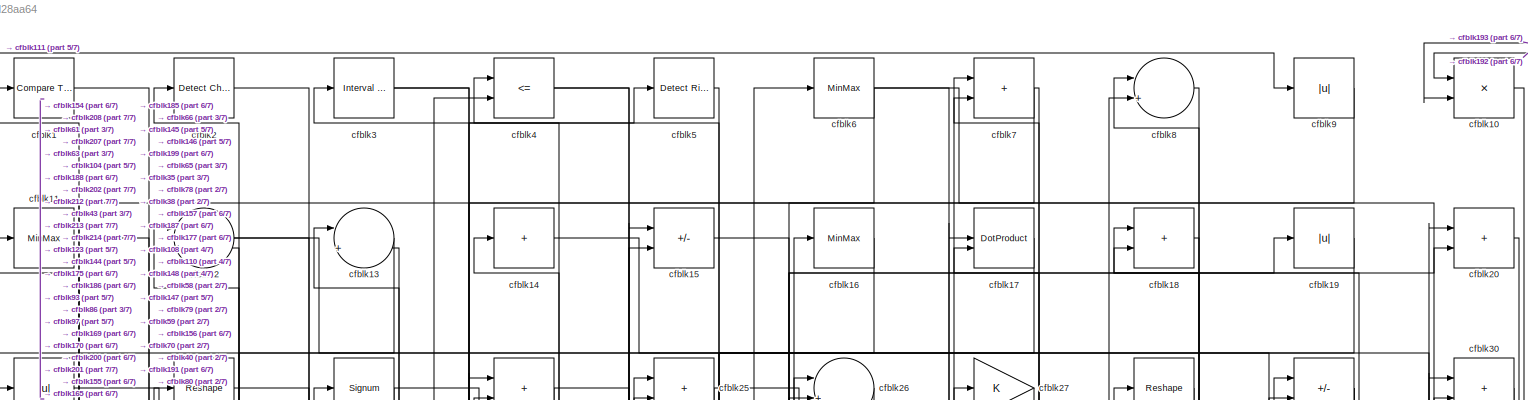
[diagram: root canvas - part 1/7, full width, top band]
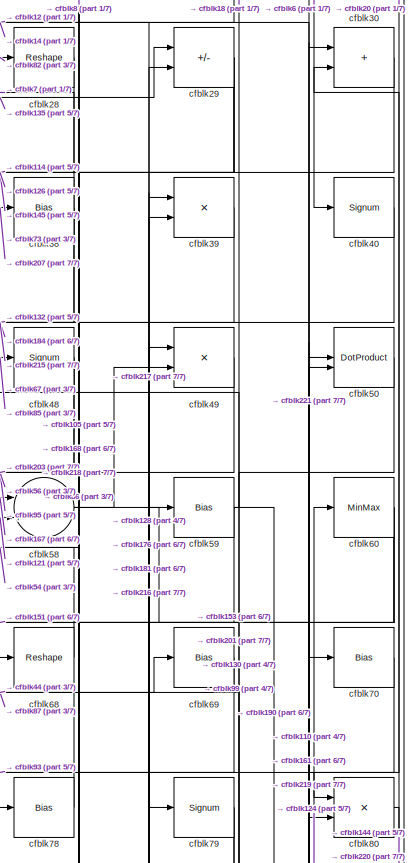
[diagram: root canvas - part 2/7, top right region]
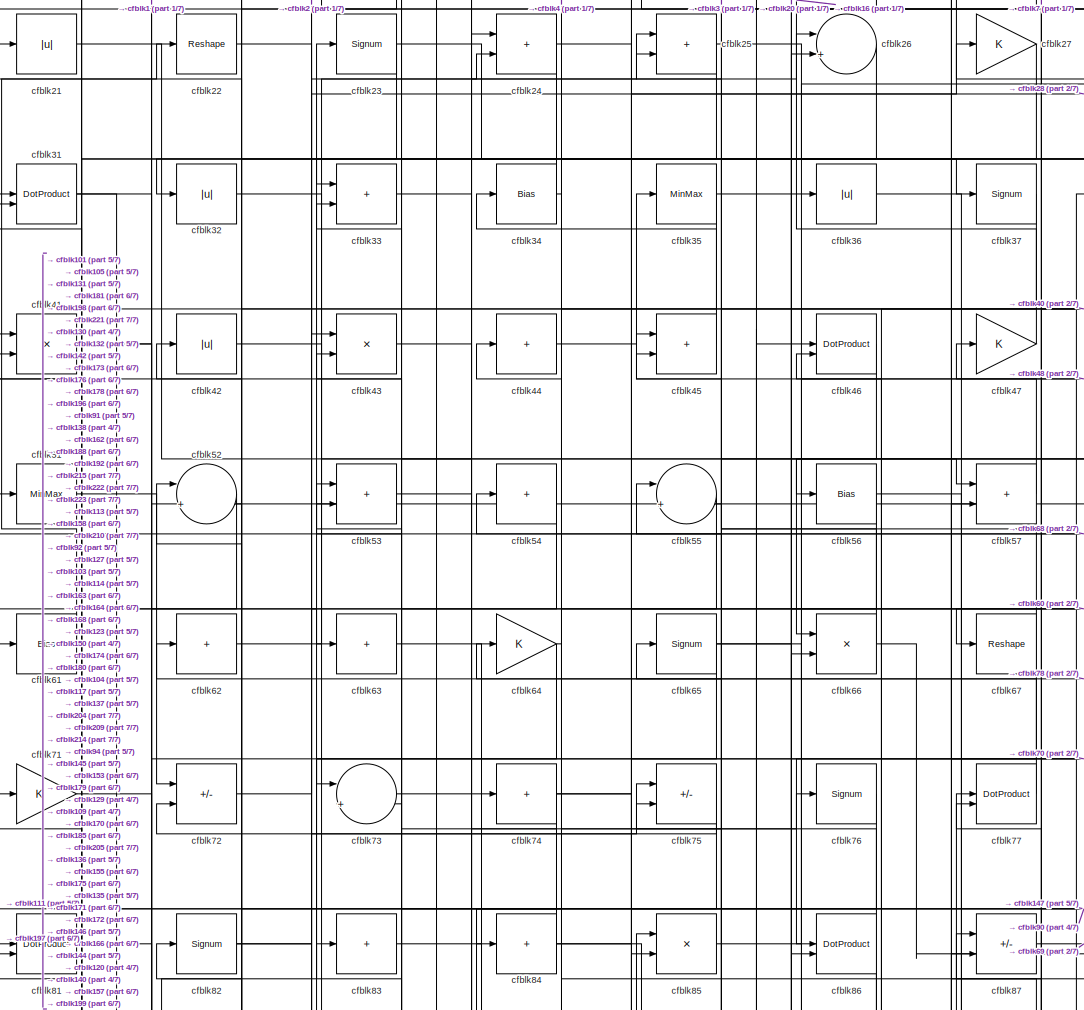
[diagram: root canvas - part 3/7, top center region]
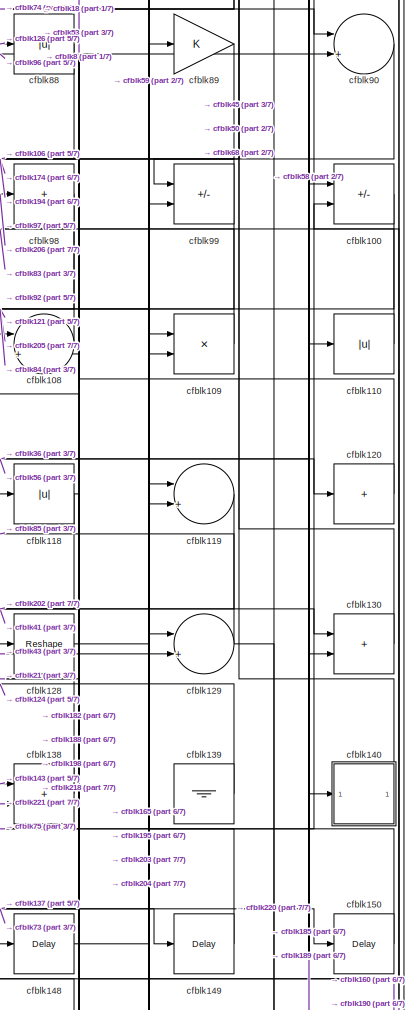
[diagram: root canvas - part 4/7, middle right region]
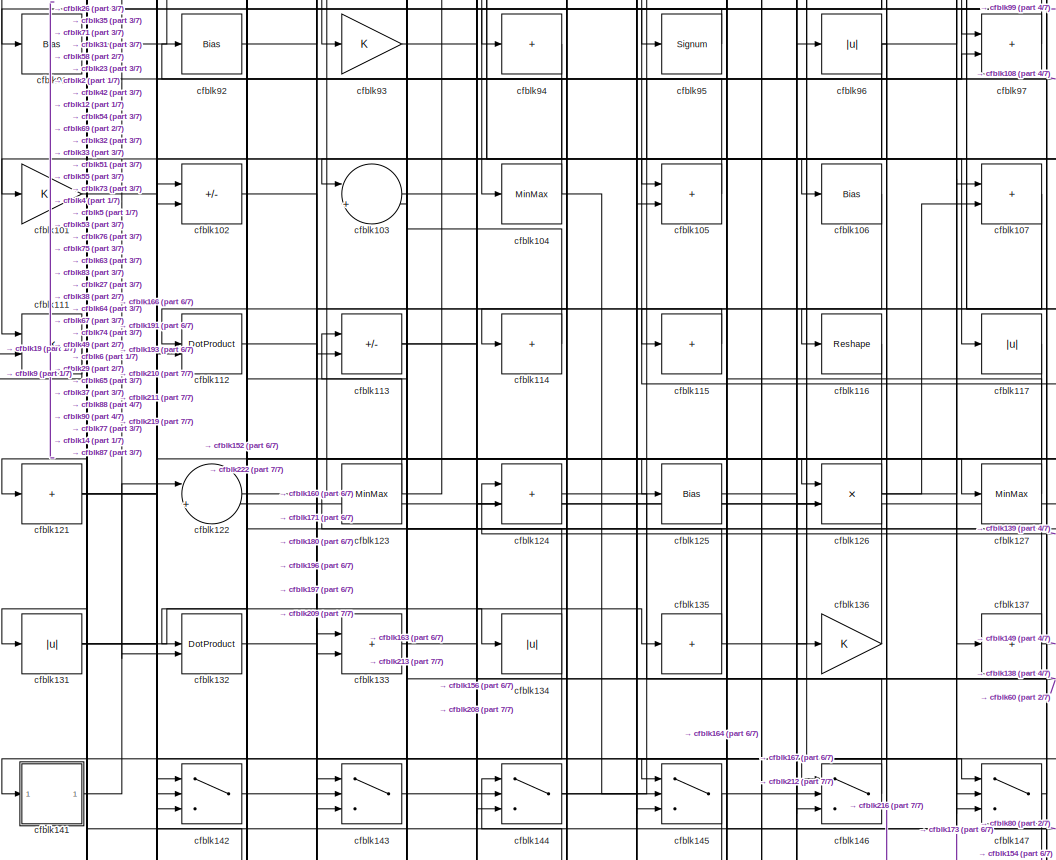
[diagram: root canvas - part 5/7, central region]
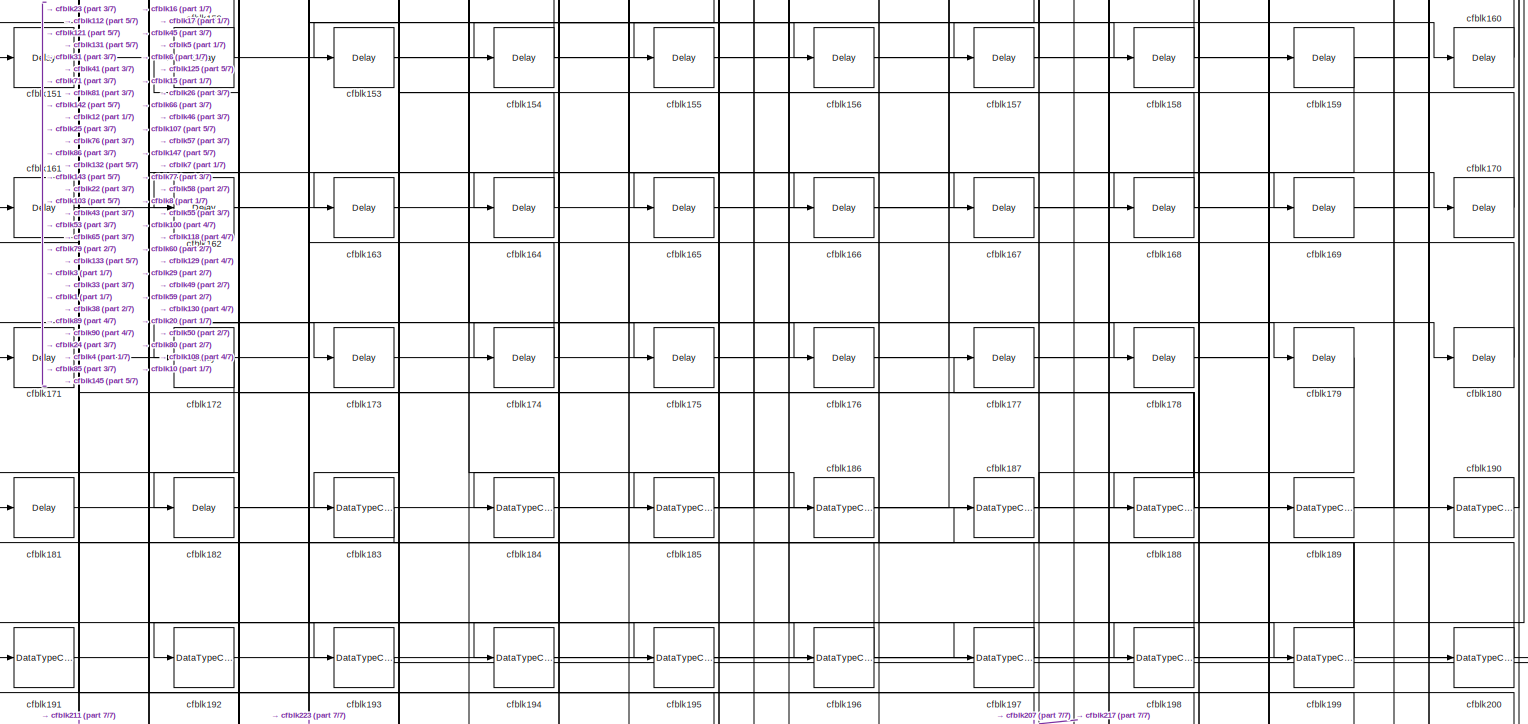
[diagram: root canvas - part 6/7, full width, bottom band]
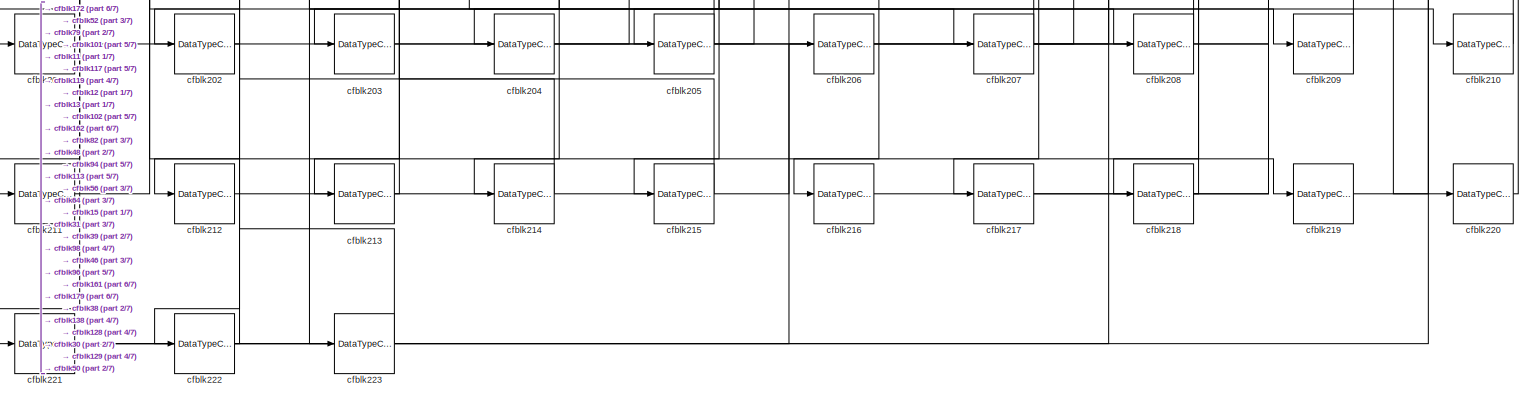
[diagram: root canvas - part 7/7, full width, bottom band]
MODEL slx_b6401d28aa64
KIND model
CONFIG AbsTol = auto
CONFIG EnableMultiTasking = off
CONFIG FixedStep = auto
CONFIG MaxStep = auto
CONFIG MinStep = auto
CONFIG RelTol = 1e-3
CONFIG SampleTimeConstraint = Unconstrained
CONFIG SolverName = VariableStepAuto
CONFIG StartTime = 0.0
CONFIG StopTime = 10.0
BLOCK [Reference] cfblk1  REF=hdlsllib/Logic and Bit
Operations/Compare
To Constant
  SourceBlock = hdlsllib/Logic and Bit\nOperations/Compare\nTo Constant
  SourceType = Compare To Constant
BLOCK [Product] cfblk10
  Inputs = */
  RndMeth = Zero
  SaturateOnIntegerOverflow = on
BLOCK [Sum] cfblk100
  IconShape = rectangular
  Inputs = +-
BLOCK [Gain] cfblk101
BLOCK [Sum] cfblk102
  IconShape = rectangular
  Inputs = +-
BLOCK [Sum] cfblk103
  Inputs = |++
BLOCK [MinMax] cfblk104
BLOCK [Sum] cfblk105
  IconShape = rectangular
BLOCK [Bias] cfblk106
  Bias = 0.0
  SaturateOnIntegerOverflow = off
BLOCK [Sum] cfblk107
  IconShape = rectangular
BLOCK [Sum] cfblk108
  Inputs = |++
BLOCK [Product] cfblk109
  Inputs = */
  RndMeth = Zero
  SaturateOnIntegerOverflow = on
BLOCK [MinMax] cfblk11
BLOCK [Abs] cfblk110
  SaturateOnIntegerOverflow = off
BLOCK [Product] cfblk111
  Inputs = */
  RndMeth = Zero
  SaturateOnIntegerOverflow = on
BLOCK [DotProduct] cfblk112
  OutDataTypeStr = Inherit: Inherit via internal rule
BLOCK [Sum] cfblk113
  IconShape = rectangular
  Inputs = +-
BLOCK [Sum] cfblk114
  IconShape = rectangular
  Inputs = +
BLOCK [Sum] cfblk115
  IconShape = rectangular
  Inputs = +
BLOCK [Reshape] cfblk116
BLOCK [Abs] cfblk117
  SaturateOnIntegerOverflow = off
BLOCK [Abs] cfblk118
  SaturateOnIntegerOverflow = off
BLOCK [Sum] cfblk119
  Inputs = |++
BLOCK [Sum] cfblk12
  Inputs = |++
BLOCK [Sum] cfblk120
  IconShape = rectangular
  Inputs = +
BLOCK [Sum] cfblk121
  IconShape = rectangular
  Inputs = +
BLOCK [Sum] cfblk122
  Inputs = |++
BLOCK [MinMax] cfblk123
BLOCK [Sum] cfblk124
  IconShape = rectangular
BLOCK [Bias] cfblk125
  Bias = 0.0
  SaturateOnIntegerOverflow = off
BLOCK [Product] cfblk126
  Inputs = */
  RndMeth = Zero
  SaturateOnIntegerOverflow = on
BLOCK [MinMax] cfblk127
BLOCK [Reshape] cfblk128
BLOCK [Sum] cfblk129
  Inputs = |++
BLOCK [Sum] cfblk13
  Inputs = |++
BLOCK [Sum] cfblk130
  IconShape = rectangular
BLOCK [Abs] cfblk131
  SaturateOnIntegerOverflow = off
BLOCK [DotProduct] cfblk132
  OutDataTypeStr = Inherit: Inherit via internal rule
BLOCK [Sum] cfblk133
  IconShape = rectangular
BLOCK [Abs] cfblk134
  SaturateOnIntegerOverflow = off
BLOCK [Sum] cfblk135
  IconShape = rectangular
  Inputs = +
BLOCK [Gain] cfblk136
BLOCK [Sum] cfblk137
  IconShape = rectangular
  Inputs = +
BLOCK [Sum] cfblk138
  IconShape = rectangular
BLOCK [Ground] cfblk139
BLOCK [Sum] cfblk14
  IconShape = rectangular
  Inputs = +
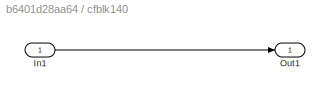
BLOCK [SubSystem] cfblk140
  LibrarySourceBlock = hdlsllib/Ports &\nSubsystems/Subsystem
BLOCK [Inport] cfblk140/In1
BLOCK [Outport] cfblk140/Out1
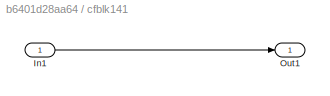
BLOCK [SubSystem] cfblk141
  LibrarySourceBlock = hdlsllib/Ports &\nSubsystems/Subsystem
BLOCK [Inport] cfblk141/In1
BLOCK [Outport] cfblk141/Out1
BLOCK [Switch] cfblk142
  InputSameDT = off
  SaturateOnIntegerOverflow = off
BLOCK [Switch] cfblk143
  InputSameDT = off
  SaturateOnIntegerOverflow = off
BLOCK [Switch] cfblk144
  InputSameDT = off
  SaturateOnIntegerOverflow = off
BLOCK [Switch] cfblk145
  InputSameDT = off
  SaturateOnIntegerOverflow = off
BLOCK [Switch] cfblk146
  InputSameDT = off
  SaturateOnIntegerOverflow = off
BLOCK [Switch] cfblk147
  InputSameDT = off
  SaturateOnIntegerOverflow = off
BLOCK [Delay] cfblk148
  InputPortMap = u0
  SampleTime = 1
BLOCK [Delay] cfblk149
  InputPortMap = u0
  SampleTime = 1
BLOCK [Sum] cfblk15
  IconShape = rectangular
  Inputs = +-
BLOCK [Delay] cfblk150
  InputPortMap = u0
  SampleTime = 1
BLOCK [Delay] cfblk151
  InputPortMap = u0
  SampleTime = 1
BLOCK [Delay] cfblk152
  InputPortMap = u0
  SampleTime = 1
BLOCK [Delay] cfblk153
  InputPortMap = u0
  SampleTime = 1
BLOCK [Delay] cfblk154
  InputPortMap = u0
  SampleTime = 1
BLOCK [Delay] cfblk155
  InputPortMap = u0
  SampleTime = 1
BLOCK [Delay] cfblk156
  InputPortMap = u0
  SampleTime = 1
BLOCK [Delay] cfblk157
  InputPortMap = u0
  SampleTime = 1
BLOCK [Delay] cfblk158
  InputPortMap = u0
  SampleTime = 1
BLOCK [Delay] cfblk159
  InputPortMap = u0
  SampleTime = 1
BLOCK [MinMax] cfblk16
BLOCK [Delay] cfblk160
  InputPortMap = u0
  SampleTime = 1
BLOCK [Delay] cfblk161
  InputPortMap = u0
  SampleTime = 1
BLOCK [Delay] cfblk162
  InputPortMap = u0
  SampleTime = 1
BLOCK [Delay] cfblk163
  InputPortMap = u0
  SampleTime = 1
BLOCK [Delay] cfblk164
  InputPortMap = u0
  SampleTime = 1
BLOCK [Delay] cfblk165
  InputPortMap = u0
  SampleTime = 1
BLOCK [Delay] cfblk166
  InputPortMap = u0
  SampleTime = 1
BLOCK [Delay] cfblk167
  InputPortMap = u0
  SampleTime = 1
BLOCK [Delay] cfblk168
  InputPortMap = u0
  SampleTime = 1
BLOCK [Delay] cfblk169
  InputPortMap = u0
  SampleTime = 1
BLOCK [DotProduct] cfblk17
  OutDataTypeStr = Inherit: Inherit via internal rule
BLOCK [Delay] cfblk170
  InputPortMap = u0
  SampleTime = 1
BLOCK [Delay] cfblk171
  InputPortMap = u0
  SampleTime = 1
BLOCK [Delay] cfblk172
  InputPortMap = u0
  SampleTime = 1
BLOCK [Delay] cfblk173
  InputPortMap = u0
  SampleTime = 1
BLOCK [Delay] cfblk174
  InputPortMap = u0
  SampleTime = 1
BLOCK [Delay] cfblk175
  InputPortMap = u0
  SampleTime = 1
BLOCK [Delay] cfblk176
  InputPortMap = u0
  SampleTime = 1
BLOCK [Delay] cfblk177
  InputPortMap = u0
  SampleTime = 1
BLOCK [Delay] cfblk178
  InputPortMap = u0
  SampleTime = 1
BLOCK [Delay] cfblk179
  InputPortMap = u0
  SampleTime = 1
BLOCK [Sum] cfblk18
  IconShape = rectangular
BLOCK [Delay] cfblk180
  InputPortMap = u0
  SampleTime = 1
BLOCK [Delay] cfblk181
  InputPortMap = u0
  SampleTime = 1
BLOCK [Delay] cfblk182
  InputPortMap = u0
  SampleTime = 1
BLOCK [DataTypeConversion] cfblk183
  OutDataTypeStr = uint8
  RndMeth = Floor
  SaturateOnIntegerOverflow = off
BLOCK [DataTypeConversion] cfblk184
  OutDataTypeStr = uint8
  RndMeth = Floor
  SaturateOnIntegerOverflow = off
BLOCK [DataTypeConversion] cfblk185
  RndMeth = Floor
  SaturateOnIntegerOverflow = off
BLOCK [DataTypeConversion] cfblk186
  OutDataTypeStr = uint8
  RndMeth = Floor
  SaturateOnIntegerOverflow = off
BLOCK [DataTypeConversion] cfblk187
  OutDataTypeStr = uint8
  RndMeth = Floor
  SaturateOnIntegerOverflow = off
BLOCK [DataTypeConversion] cfblk188
  RndMeth = Floor
  SaturateOnIntegerOverflow = off
BLOCK [DataTypeConversion] cfblk189
  OutDataTypeStr = uint8
  RndMeth = Floor
  SaturateOnIntegerOverflow = off
BLOCK [Abs] cfblk19
  SaturateOnIntegerOverflow = off
BLOCK [DataTypeConversion] cfblk190
  OutDataTypeStr = uint8
  RndMeth = Floor
  SaturateOnIntegerOverflow = off
BLOCK [DataTypeConversion] cfblk191
  OutDataTypeStr = uint8
  RndMeth = Floor
  SaturateOnIntegerOverflow = off
BLOCK [DataTypeConversion] cfblk192
  OutDataTypeStr = uint8
  RndMeth = Floor
  SaturateOnIntegerOverflow = off
BLOCK [DataTypeConversion] cfblk193
  OutDataTypeStr = uint8
  RndMeth = Floor
  SaturateOnIntegerOverflow = off
BLOCK [DataTypeConversion] cfblk194
  OutDataTypeStr = uint8
  RndMeth = Floor
  SaturateOnIntegerOverflow = off
BLOCK [DataTypeConversion] cfblk195
  OutDataTypeStr = uint8
  RndMeth = Floor
  SaturateOnIntegerOverflow = off
BLOCK [DataTypeConversion] cfblk196
  OutDataTypeStr = uint8
  RndMeth = Floor
  SaturateOnIntegerOverflow = off
BLOCK [DataTypeConversion] cfblk197
  OutDataTypeStr = uint8
  RndMeth = Floor
  SaturateOnIntegerOverflow = off
BLOCK [DataTypeConversion] cfblk198
  OutDataTypeStr = uint8
  RndMeth = Floor
  SaturateOnIntegerOverflow = off
BLOCK [DataTypeConversion] cfblk199
  RndMeth = Floor
  SaturateOnIntegerOverflow = off
BLOCK [Reference] cfblk2  REF=simulink/Logic and Bit
Operations/Detect
Change
  LibrarySourceBlock = hdlsllib/Logic and Bit\nOperations/Detect\nChange
  SourceBlock = simulink/Logic and Bit\nOperations/Detect\nChange
  SourceType = Detect Change
BLOCK [Sum] cfblk20
  IconShape = rectangular
BLOCK [DataTypeConversion] cfblk200
  OutDataTypeStr = uint8
  RndMeth = Floor
  SaturateOnIntegerOverflow = off
BLOCK [DataTypeConversion] cfblk201
  OutDataTypeStr = uint8
  RndMeth = Floor
  SaturateOnIntegerOverflow = off
BLOCK [DataTypeConversion] cfblk202
  OutDataTypeStr = uint8
  RndMeth = Floor
  SaturateOnIntegerOverflow = off
BLOCK [DataTypeConversion] cfblk203
  OutDataTypeStr = uint8
  RndMeth = Floor
  SaturateOnIntegerOverflow = off
BLOCK [DataTypeConversion] cfblk204
  OutDataTypeStr = uint8
  RndMeth = Floor
  SaturateOnIntegerOverflow = off
BLOCK [DataTypeConversion] cfblk205
  RndMeth = Floor
  SaturateOnIntegerOverflow = off
BLOCK [DataTypeConversion] cfblk206
  OutDataTypeStr = uint8
  RndMeth = Floor
  SaturateOnIntegerOverflow = off
BLOCK [DataTypeConversion] cfblk207
  RndMeth = Floor
  SaturateOnIntegerOverflow = off
BLOCK [DataTypeConversion] cfblk208
  OutDataTypeStr = uint8
  RndMeth = Floor
  SaturateOnIntegerOverflow = off
BLOCK [DataTypeConversion] cfblk209
  OutDataTypeStr = uint8
  RndMeth = Floor
  SaturateOnIntegerOverflow = off
BLOCK [Abs] cfblk21
  SaturateOnIntegerOverflow = off
BLOCK [DataTypeConversion] cfblk210
  OutDataTypeStr = uint8
  RndMeth = Floor
  SaturateOnIntegerOverflow = off
BLOCK [DataTypeConversion] cfblk211
  OutDataTypeStr = uint8
  RndMeth = Floor
  SaturateOnIntegerOverflow = off
BLOCK [DataTypeConversion] cfblk212
  OutDataTypeStr = uint8
  RndMeth = Floor
  SaturateOnIntegerOverflow = off
BLOCK [DataTypeConversion] cfblk213
  OutDataTypeStr = uint8
  RndMeth = Floor
  SaturateOnIntegerOverflow = off
BLOCK [DataTypeConversion] cfblk214
  OutDataTypeStr = uint8
  RndMeth = Floor
  SaturateOnIntegerOverflow = off
BLOCK [DataTypeConversion] cfblk215
  OutDataTypeStr = uint8
  RndMeth = Floor
  SaturateOnIntegerOverflow = off
BLOCK [DataTypeConversion] cfblk216
  OutDataTypeStr = uint8
  RndMeth = Floor
  SaturateOnIntegerOverflow = off
BLOCK [DataTypeConversion] cfblk217
  OutDataTypeStr = uint8
  RndMeth = Floor
  SaturateOnIntegerOverflow = off
BLOCK [DataTypeConversion] cfblk218
  OutDataTypeStr = uint8
  RndMeth = Floor
  SaturateOnIntegerOverflow = off
BLOCK [DataTypeConversion] cfblk219
  OutDataTypeStr = uint8
  RndMeth = Floor
  SaturateOnIntegerOverflow = off
BLOCK [Reshape] cfblk22
BLOCK [DataTypeConversion] cfblk220
  OutDataTypeStr = uint8
  RndMeth = Floor
  SaturateOnIntegerOverflow = off
BLOCK [DataTypeConversion] cfblk221
  RndMeth = Floor
  SaturateOnIntegerOverflow = off
BLOCK [DataTypeConversion] cfblk222
  OutDataTypeStr = uint8
  RndMeth = Floor
  SaturateOnIntegerOverflow = off
BLOCK [DataTypeConversion] cfblk223
  OutDataTypeStr = uint8
  RndMeth = Floor
  SaturateOnIntegerOverflow = off
BLOCK [Signum] cfblk23
BLOCK [Sum] cfblk24
  IconShape = rectangular
BLOCK [Sum] cfblk25
  IconShape = rectangular
BLOCK [Sum] cfblk26
  Inputs = |++
BLOCK [Gain] cfblk27
BLOCK [Reshape] cfblk28
BLOCK [Sum] cfblk29
  IconShape = rectangular
  Inputs = +-
BLOCK [Reference] cfblk3  REF=hdlsllib/Logic and Bit
Operations/Interval Test
  SourceBlock = hdlsllib/Logic and Bit\nOperations/Interval Test
  SourceType = Interval Test
BLOCK [Sum] cfblk30
  IconShape = rectangular
BLOCK [DotProduct] cfblk31
  OutDataTypeStr = Inherit: Inherit via internal rule
BLOCK [Abs] cfblk32
  SaturateOnIntegerOverflow = off
BLOCK [Sum] cfblk33
  IconShape = rectangular
BLOCK [Bias] cfblk34
  Bias = 0.0
  SaturateOnIntegerOverflow = off
BLOCK [MinMax] cfblk35
BLOCK [Abs] cfblk36
  SaturateOnIntegerOverflow = off
BLOCK [Signum] cfblk37
BLOCK [Bias] cfblk38
  Bias = 0.0
  SaturateOnIntegerOverflow = off
BLOCK [Product] cfblk39
  Inputs = */
  RndMeth = Zero
  SaturateOnIntegerOverflow = on
BLOCK [RelationalOperator] cfblk4
  InputSameDT = off
  Operator = <=
  OutDataTypeStr = boolean
BLOCK [Signum] cfblk40
BLOCK [Product] cfblk41
  Inputs = */
  RndMeth = Zero
  SaturateOnIntegerOverflow = on
BLOCK [Abs] cfblk42
  SaturateOnIntegerOverflow = off
BLOCK [Product] cfblk43
  Inputs = */
  RndMeth = Zero
  SaturateOnIntegerOverflow = on
BLOCK [Sum] cfblk44
  IconShape = rectangular
  Inputs = +
BLOCK [Sum] cfblk45
  IconShape = rectangular
BLOCK [DotProduct] cfblk46
  OutDataTypeStr = Inherit: Inherit via internal rule
BLOCK [Gain] cfblk47
BLOCK [Signum] cfblk48
BLOCK [Product] cfblk49
  Inputs = */
  RndMeth = Zero
  SaturateOnIntegerOverflow = on
BLOCK [Reference] cfblk5  REF=hdlsllib/Logic and Bit
Operations/Detect Rise
Positive
  SourceBlock = hdlsllib/Logic and Bit\nOperations/Detect Rise\nPositive
  SourceType = Detect Rise Positive
BLOCK [DotProduct] cfblk50
  OutDataTypeStr = Inherit: Inherit via internal rule
BLOCK [MinMax] cfblk51
BLOCK [Sum] cfblk52
  Inputs = |++
BLOCK [Sum] cfblk53
  IconShape = rectangular
BLOCK [Sum] cfblk54
  IconShape = rectangular
  Inputs = +
BLOCK [Sum] cfblk55
  Inputs = |++
BLOCK [Bias] cfblk56
  Bias = 0.0
  SaturateOnIntegerOverflow = off
BLOCK [Sum] cfblk57
  IconShape = rectangular
BLOCK [Sum] cfblk58
  Inputs = |++
BLOCK [Bias] cfblk59
  Bias = 0.0
  SaturateOnIntegerOverflow = off
BLOCK [MinMax] cfblk6
BLOCK [MinMax] cfblk60
BLOCK [Bias] cfblk61
  Bias = 0.0
  SaturateOnIntegerOverflow = off
BLOCK [Sum] cfblk62
  IconShape = rectangular
  Inputs = +
BLOCK [Sum] cfblk63
  IconShape = rectangular
  Inputs = +
BLOCK [Gain] cfblk64
BLOCK [Signum] cfblk65
BLOCK [Product] cfblk66
  Inputs = */
  RndMeth = Zero
  SaturateOnIntegerOverflow = on
BLOCK [Reshape] cfblk67
BLOCK [Reshape] cfblk68
BLOCK [Bias] cfblk69
  Bias = 0.0
  SaturateOnIntegerOverflow = off
BLOCK [Sum] cfblk7
  IconShape = rectangular
BLOCK [Bias] cfblk70
  Bias = 0.0
  SaturateOnIntegerOverflow = off
BLOCK [Gain] cfblk71
BLOCK [Sum] cfblk72
  IconShape = rectangular
  Inputs = +-
BLOCK [Sum] cfblk73
  Inputs = |++
BLOCK [Sum] cfblk74
  IconShape = rectangular
  Inputs = +
BLOCK [Sum] cfblk75
  IconShape = rectangular
  Inputs = +-
BLOCK [Signum] cfblk76
BLOCK [DotProduct] cfblk77
  OutDataTypeStr = Inherit: Inherit via internal rule
BLOCK [Bias] cfblk78
  Bias = 0.0
  SaturateOnIntegerOverflow = off
BLOCK [Signum] cfblk79
BLOCK [Sum] cfblk8
  Inputs = |++
BLOCK [Product] cfblk80
  Inputs = */
  RndMeth = Zero
  SaturateOnIntegerOverflow = on
BLOCK [DotProduct] cfblk81
  OutDataTypeStr = Inherit: Inherit via internal rule
BLOCK [Signum] cfblk82
BLOCK [Sum] cfblk83
  IconShape = rectangular
  Inputs = +
BLOCK [Sum] cfblk84
  IconShape = rectangular
  Inputs = +
BLOCK [Product] cfblk85
  Inputs = */
  RndMeth = Zero
  SaturateOnIntegerOverflow = on
BLOCK [DotProduct] cfblk86
  OutDataTypeStr = Inherit: Inherit via internal rule
BLOCK [Sum] cfblk87
  IconShape = rectangular
  Inputs = +-
BLOCK [Abs] cfblk88
  SaturateOnIntegerOverflow = off
BLOCK [Gain] cfblk89
BLOCK [Abs] cfblk9
  SaturateOnIntegerOverflow = off
BLOCK [Sum] cfblk90
  Inputs = |++
BLOCK [Bias] cfblk91
  Bias = 0.0
  SaturateOnIntegerOverflow = off
BLOCK [Bias] cfblk92
  Bias = 0.0
  SaturateOnIntegerOverflow = off
BLOCK [Gain] cfblk93
BLOCK [Sum] cfblk94
  IconShape = rectangular
  Inputs = +
BLOCK [Signum] cfblk95
BLOCK [Abs] cfblk96
  SaturateOnIntegerOverflow = off
BLOCK [Sum] cfblk97
  IconShape = rectangular
BLOCK [Sum] cfblk98
  IconShape = rectangular
  Inputs = +
BLOCK [Sum] cfblk99
  IconShape = rectangular
  Inputs = +-
LINE cfblk100:1 -> cfblk188:1
LINE cfblk101:1 -> cfblk219:1
LINE cfblk102:1 -> cfblk209:1
LINE cfblk103:1 -> cfblk26:1
NET cfblk104:1 -> cfblk145:2, cfblk2:1
LINE cfblk105:1 -> cfblk71:1
LINE cfblk106:1 -> cfblk133:2
NET cfblk107:1 -> cfblk115:1, cfblk116:1
LINE cfblk108:1 -> cfblk92:1
LINE cfblk109:1 -> cfblk83:1
LINE cfblk10:1 -> cfblk191:1
LINE cfblk110:1 -> cfblk18:2
LINE cfblk111:1 -> cfblk9:1
LINE cfblk112:1 -> cfblk197:1
NET cfblk113:1 -> cfblk208:1, cfblk76:1
LINE cfblk114:1 -> cfblk51:1
LINE cfblk115:1 -> cfblk112:1
LINE cfblk116:1 -> cfblk124:2
LINE cfblk117:1 -> cfblk222:1
NET cfblk118:1 -> cfblk182:1, cfblk198:1
LINE cfblk119:1 -> cfblk202:1
LINE cfblk11:1 -> cfblk207:1
LINE cfblk120:1 -> cfblk53:1
NET cfblk121:1 -> cfblk144:3, cfblk193:1, cfblk58:2
LINE cfblk122:1 -> cfblk126:1
NET cfblk123:1 -> cfblk42:1, cfblk4:2
LINE cfblk124:1 -> cfblk60:1
LINE cfblk125:1 -> cfblk167:1
NET cfblk126:1 -> cfblk107:2, cfblk125:1, cfblk88:1
LINE cfblk127:1 -> cfblk55:1
LINE cfblk128:1 -> cfblk59:1
NET cfblk129:1 -> cfblk220:1, cfblk85:1
NET cfblk12:1 -> cfblk147:3, cfblk79:1
LINE cfblk130:1 -> cfblk68:1
NET cfblk131:1 -> cfblk134:1, cfblk166:1, cfblk97:2
LINE cfblk132:1 -> cfblk160:1
LINE cfblk133:1 -> cfblk156:1
NET cfblk134:1 -> cfblk123:1, cfblk141:1
NET cfblk135:1 -> cfblk29:1, cfblk33:2
LINE cfblk136:1 -> cfblk122:2
NET cfblk137:1 -> cfblk149:1, cfblk73:2
LINE cfblk138:1 -> cfblk21:1
LINE cfblk139:1 -> cfblk124:1
LINE cfblk13:1 -> cfblk212:1
LINE cfblk140/In1:1 -> cfblk140/Out1:1
LINE cfblk140:1 -> cfblk45:1
LINE cfblk141/In1:1 -> cfblk141/Out1:1
LINE cfblk141:1 -> cfblk122:1
LINE cfblk142:1 -> cfblk143:2
LINE cfblk143:1 -> cfblk138:1
NET cfblk144:1 -> cfblk146:2, cfblk77:1
NET cfblk145:1 -> cfblk164:1, cfblk19:1
LINE cfblk146:1 -> cfblk113:1
NET cfblk147:1 -> cfblk154:1, cfblk87:1
LINE cfblk148:1 -> cfblk99:2
LINE cfblk149:1 -> cfblk109:1
LINE cfblk14:1 -> cfblk70:1
LINE cfblk150:1 -> cfblk75:2
LINE cfblk151:1 -> cfblk50:2
LINE cfblk152:1 -> cfblk142:1
LINE cfblk153:1 -> cfblk85:2
LINE cfblk154:1 -> cfblk1:1
LINE cfblk155:1 -> cfblk66:2
LINE cfblk156:1 -> cfblk20:1
LINE cfblk157:1 -> cfblk77:2
LINE cfblk158:1 -> cfblk55:2
LINE cfblk159:1 -> cfblk183:1
LINE cfblk15:1 -> cfblk199:1
LINE cfblk160:1 -> cfblk108:1
LINE cfblk161:1 -> cfblk80:2
LINE cfblk162:1 -> cfblk223:1
LINE cfblk163:1 -> cfblk103:2
LINE cfblk164:1 -> cfblk43:2
LINE cfblk165:1 -> cfblk129:1
LINE cfblk166:1 -> cfblk57:2
LINE cfblk167:1 -> cfblk58:1
LINE cfblk168:1 -> cfblk53:2
LINE cfblk169:1 -> cfblk200:1
LINE cfblk16:1 -> cfblk165:1
LINE cfblk170:1 -> cfblk45:2
LINE cfblk171:1 -> cfblk143:3
LINE cfblk172:1 -> cfblk211:1
LINE cfblk173:1 -> cfblk107:1
LINE cfblk174:1 -> cfblk24:1
LINE cfblk175:1 -> cfblk26:2
LINE cfblk176:1 -> cfblk29:2
LINE cfblk177:1 -> cfblk8:2
LINE cfblk178:1 -> cfblk189:1
LINE cfblk179:1 -> cfblk217:1
LINE cfblk17:1 -> cfblk185:1
LINE cfblk180:1 -> cfblk143:1
LINE cfblk181:1 -> cfblk49:1
LINE cfblk182:1 -> cfblk195:1
LINE cfblk183:1 -> cfblk187:1
LINE cfblk184:1 -> cfblk159:1
NET cfblk185:1 -> cfblk130:2, cfblk65:1, cfblk6:1
LINE cfblk186:1 -> cfblk17:1
LINE cfblk187:1 -> cfblk17:2
NET cfblk188:1 -> cfblk12:2, cfblk152:1, cfblk177:1, cfblk31:2
LINE cfblk189:1 -> cfblk100:1
LINE cfblk18:1 -> cfblk148:1
LINE cfblk190:1 -> cfblk100:2
LINE cfblk191:1 -> cfblk112:2
LINE cfblk192:1 -> cfblk10:1
LINE cfblk193:1 -> cfblk10:2
LINE cfblk194:1 -> cfblk118:1
LINE cfblk195:1 -> cfblk89:1
LINE cfblk196:1 -> cfblk133:1
LINE cfblk197:1 -> cfblk81:1
LINE cfblk198:1 -> cfblk81:2
NET cfblk199:1 -> cfblk41:2, cfblk46:2, cfblk7:2
LINE cfblk19:1 -> cfblk111:2
LINE cfblk1:1 -> cfblk63:1
LINE cfblk200:1 -> cfblk15:1
LINE cfblk201:1 -> cfblk15:2
LINE cfblk202:1 -> cfblk12:1
LINE cfblk203:1 -> cfblk119:1
LINE cfblk204:1 -> cfblk119:2
NET cfblk205:1 -> cfblk31:1, cfblk46:1
LINE cfblk206:1 -> cfblk98:1
NET cfblk207:1 -> cfblk161:1, cfblk38:1
LINE cfblk208:1 -> cfblk11:1
LINE cfblk209:1 -> cfblk64:1
LINE cfblk20:1 -> cfblk80:1
LINE cfblk210:1 -> cfblk102:1
LINE cfblk211:1 -> cfblk102:2
LINE cfblk212:1 -> cfblk96:1
LINE cfblk213:1 -> cfblk13:1
LINE cfblk214:1 -> cfblk13:2
LINE cfblk215:1 -> cfblk82:1
LINE cfblk216:1 -> cfblk39:1
LINE cfblk217:1 -> cfblk39:2
LINE cfblk218:1 -> cfblk128:1
LINE cfblk219:1 -> cfblk30:1
LINE cfblk21:1 -> cfblk57:1
LINE cfblk220:1 -> cfblk30:2
NET cfblk221:1 -> cfblk138:2, cfblk206:1, cfblk50:1
LINE cfblk222:1 -> cfblk52:1
LINE cfblk223:1 -> cfblk52:2
LINE cfblk22:1 -> cfblk158:1
NET cfblk23:1 -> cfblk136:1, cfblk181:1
NET cfblk24:1 -> cfblk179:1, cfblk32:1
NET cfblk25:1 -> cfblk162:1, cfblk37:1
LINE cfblk26:1 -> cfblk101:1
LINE cfblk27:1 -> cfblk94:1
LINE cfblk28:1 -> cfblk73:1
NET cfblk29:1 -> cfblk114:1, cfblk126:2, cfblk145:1
LINE cfblk2:1 -> cfblk43:1
LINE cfblk30:1 -> cfblk218:1
NET cfblk31:1 -> cfblk132:2, cfblk178:1
LINE cfblk32:1 -> cfblk127:1
LINE cfblk33:1 -> cfblk180:1
NET cfblk34:1 -> cfblk33:1, cfblk84:1
NET cfblk35:1 -> cfblk131:1, cfblk16:1
LINE cfblk36:1 -> cfblk120:1
LINE cfblk37:1 -> cfblk146:1
NET cfblk38:1 -> cfblk132:1, cfblk184:1, cfblk7:1
LINE cfblk39:1 -> cfblk215:1
NET cfblk3:1 -> cfblk175:1, cfblk186:1
LINE cfblk40:1 -> cfblk67:1
NET cfblk41:1 -> cfblk130:1, cfblk176:1
LINE cfblk42:1 -> cfblk74:1
LINE cfblk43:1 -> cfblk129:2
LINE cfblk44:1 -> cfblk35:1
LINE cfblk45:1 -> cfblk34:1
LINE cfblk46:1 -> cfblk66:1
LINE cfblk47:1 -> cfblk36:1
NET cfblk48:1 -> cfblk203:1, cfblk56:1
LINE cfblk49:1 -> cfblk95:1
NET cfblk4:1 -> cfblk169:1, cfblk170:1
LINE cfblk50:1 -> cfblk99:1
LINE cfblk51:1 -> cfblk72:1
LINE cfblk52:1 -> cfblk221:1
LINE cfblk53:1 -> cfblk135:1
LINE cfblk54:1 -> cfblk113:2
LINE cfblk55:1 -> cfblk103:1
NET cfblk56:1 -> cfblk140:1, cfblk214:1
LINE cfblk57:1 -> cfblk47:1
NET cfblk58:1 -> cfblk110:1, cfblk49:2, cfblk8:1
NET cfblk59:1 -> cfblk151:1, cfblk18:1, cfblk190:1
LINE cfblk5:1 -> cfblk155:1
NET cfblk60:1 -> cfblk105:2, cfblk168:1, cfblk86:2
LINE cfblk61:1 -> cfblk22:1
LINE cfblk62:1 -> cfblk25:2
LINE cfblk63:1 -> cfblk117:1
NET cfblk64:1 -> cfblk142:2, cfblk204:1
NET cfblk65:1 -> cfblk147:1, cfblk163:1, cfblk20:2
NET cfblk66:1 -> cfblk3:1, cfblk87:2
NET cfblk67:1 -> cfblk145:3, cfblk25:1
LINE cfblk68:1 -> cfblk54:1
LINE cfblk69:1 -> cfblk93:1
NET cfblk6:1 -> cfblk146:3, cfblk40:1, cfblk78:1
LINE cfblk70:1 -> cfblk86:1
LINE cfblk71:1 -> cfblk173:1
LINE cfblk72:1 -> cfblk24:2
LINE cfblk73:1 -> cfblk150:1
NET cfblk74:1 -> cfblk111:1, cfblk147:2, cfblk90:1
NET cfblk75:1 -> cfblk104:1, cfblk72:2
LINE cfblk76:1 -> cfblk192:1
LINE cfblk77:1 -> cfblk62:1
LINE cfblk78:1 -> cfblk44:1
NET cfblk79:1 -> cfblk153:1, cfblk201:1
NET cfblk7:1 -> cfblk157:1, cfblk61:1
LINE cfblk80:1 -> cfblk144:1
LINE cfblk81:1 -> cfblk196:1
NET cfblk82:1 -> cfblk210:1, cfblk28:1
LINE cfblk83:1 -> cfblk137:1
NET cfblk84:1 -> cfblk109:2, cfblk27:1, cfblk41:1
LINE cfblk85:1 -> cfblk48:1
NET cfblk86:1 -> cfblk171:1, cfblk172:1, cfblk4:1
LINE cfblk87:1 -> cfblk69:1
LINE cfblk88:1 -> cfblk106:1
LINE cfblk89:1 -> cfblk194:1
LINE cfblk8:1 -> cfblk108:2
LINE cfblk90:1 -> cfblk174:1
LINE cfblk91:1 -> cfblk23:1
LINE cfblk92:1 -> cfblk75:1
LINE cfblk93:1 -> cfblk5:1
LINE cfblk94:1 -> cfblk213:1
LINE cfblk95:1 -> cfblk91:1
NET cfblk96:1 -> cfblk105:1, cfblk142:3, cfblk216:1, cfblk90:2
LINE cfblk97:1 -> cfblk14:1
LINE cfblk98:1 -> cfblk205:1
NET cfblk99:1 -> cfblk121:1, cfblk97:1
LINE cfblk9:1 -> cfblk144:2
note: NET lines group one-source signal fan-out (src -> all destinations, sorted); 1:1 wires keep LINE
